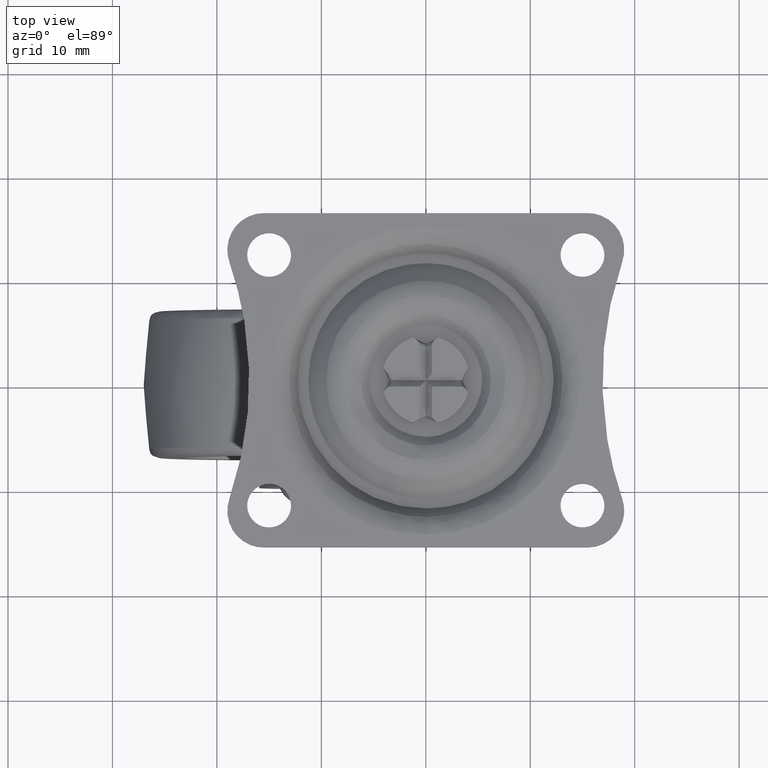
[diagram: clean part render]
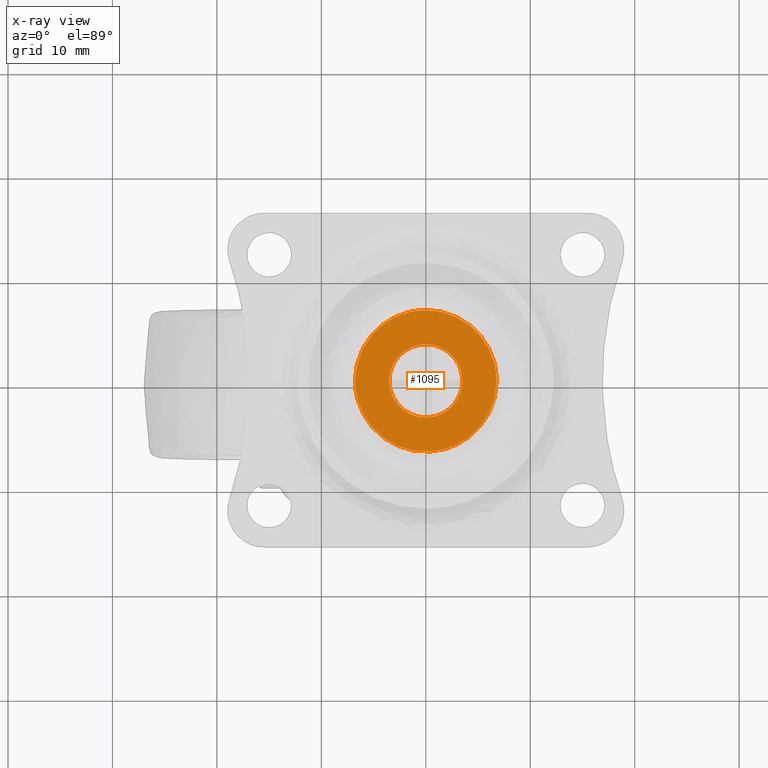
[diagram: x-ray — body ghosted, one internal face saturated and labeled with its STEP entity id]
A machine part, top view, then the same camera in x-ray: the body is ghosted and one INTERNAL B-rep face — a face not visible from any outside direction — is saturated and labeled: STEP entity #1095.
In plain terms, the highlighted face is a freeform B-spline surface patch.
Its self-contained STEP definition (entity closure, byte-faithful):
#85=CARTESIAN_POINT('',(-0.413124672162102,-3.475522380718831,-4.400000000000182));
#86=VERTEX_POINT('',#85);
#92=CARTESIAN_POINT('',(3.499989000004121,0.000005499999830,-4.400000000000181));
#93=VERTEX_POINT('',#92);
#94=CARTESIAN_POINT('',(-0.413124672162102,-3.475522380718832,-4.400000000000182));
#95=CARTESIAN_POINT('',(-0.207289593101051,-3.499989000004490,-4.400000000000181));
#96=CARTESIAN_POINT('',(-0.000005500000199,-3.499989000004490,-4.400000000000181));
#97=CARTESIAN_POINT('',(3.499989000004119,-3.499989000004490,-4.400000000000182));
#98=CARTESIAN_POINT('',(3.499989000004121,0.000005499999830,-4.400000000000181));
#106=(BOUNDED_CURVE()B_SPLINE_CURVE(2,(#94,#95,#96,#97,#98),.UNSPECIFIED.,.F.,.U.)B_SPLINE_CURVE_WITH_KNOTS((3,2,3),(0.229562473510681,0.250000000000000,0.500000000000000),.UNSPECIFIED.)CURVE()GEOMETRIC_REPRESENTATION_ITEM()RATIONAL_B_SPLINE_CURVE((0.956026754178159,0.976055948327833,1.0,0.707106781186547,1.0))REPRESENTATION_ITEM(''));
#107=EDGE_CURVE('',#86,#93,#106,.T.);
#109=CARTESIAN_POINT('',(0.213664052682512,3.493471804734549,-4.400000000000181));
#110=VERTEX_POINT('',#109);
#111=CARTESIAN_POINT('',(3.499989000004121,0.000005499999830,-4.400000000000181));
#112=CARTESIAN_POINT('',(3.499989000004119,3.292471560144241,-4.400000000000181));
#113=CARTESIAN_POINT('',(0.213664052682512,3.493471804734549,-4.400000000000181));
#121=(BOUNDED_CURVE()B_SPLINE_CURVE(2,(#111,#112,#113),.UNSPECIFIED.,.F.,.U.)B_SPLINE_CURVE_WITH_KNOTS((3,3),(0.500000000000000,0.739332962234320),.UNSPECIFIED.)CURVE()GEOMETRIC_REPRESENTATION_ITEM()RATIONAL_B_SPLINE_CURVE((1.0,0.719603993292126,0.976072041656810))REPRESENTATION_ITEM(''));
#122=EDGE_CURVE('',#93,#110,#121,.T.);
#196=CARTESIAN_POINT('',(-3.500000000004519,0.000005499999830,-4.400000000000181));
#197=VERTEX_POINT('',#196);
#198=CARTESIAN_POINT('',(0.213664052682512,3.493471804734549,-4.400000000000181));
#199=CARTESIAN_POINT('',(0.106929003582428,3.500000000004150,-4.400000000000181));
#200=CARTESIAN_POINT('',(-0.000005500000199,3.500000000004150,-4.400000000000181));
#201=CARTESIAN_POINT('',(-3.500000000004520,3.500000000004149,-4.400000000000182));
#202=CARTESIAN_POINT('',(-3.500000000004519,0.000005499999830,-4.400000000000181));
#210=(BOUNDED_CURVE()B_SPLINE_CURVE(2,(#198,#199,#200,#201,#202),.UNSPECIFIED.,.F.,.U.)B_SPLINE_CURVE_WITH_KNOTS((3,2,3),(0.739332962234321,0.750000000000000,1.0),.UNSPECIFIED.)CURVE()GEOMETRIC_REPRESENTATION_ITEM()RATIONAL_B_SPLINE_CURVE((0.976072041656812,0.987502787894422,1.0,0.707106781186547,1.0))REPRESENTATION_ITEM(''));
#211=EDGE_CURVE('',#110,#197,#210,.T.);
#213=CARTESIAN_POINT('',(-3.500000000004519,0.000005499999830,-4.400000000000181));
#214=CARTESIAN_POINT('',(-3.500000000004518,-3.108600455781976,-4.400000000000182));
#215=CARTESIAN_POINT('',(-0.413124672162102,-3.475522380718832,-4.400000000000182));
#223=(BOUNDED_CURVE()B_SPLINE_CURVE(2,(#213,#214,#215),.UNSPECIFIED.,.F.,.U.)B_SPLINE_CURVE_WITH_KNOTS((3,3),(0.0,0.229562473510682),.UNSPECIFIED.)CURVE()GEOMETRIC_REPRESENTATION_ITEM()RATIONAL_B_SPLINE_CURVE((1.0,0.731050832858714,0.956026754178159))REPRESENTATION_ITEM(''));
#224=EDGE_CURVE('',#197,#86,#223,.T.);
#861=CARTESIAN_POINT('',(0.472788007575981,-6.763446083952085,-4.400000000207625));
#862=VERTEX_POINT('',#861);
#863=CARTESIAN_POINT('',(-6.779950695194750,0.0,-4.400000000000090));
#864=VERTEX_POINT('',#863);
#865=CARTESIAN_POINT('',(0.472788007575981,-6.763446083952085,-4.400000000207625));
#866=CARTESIAN_POINT('',(0.236682084515512,-6.779950695194750,-4.400000000000090));
#867=CARTESIAN_POINT('',(0.0,-6.779950695194750,-4.400000000000090));
#868=CARTESIAN_POINT('',(-6.779950695194750,-6.779950695194750,-4.400000000000091));
#869=CARTESIAN_POINT('',(-6.779950695194750,0.0,-4.400000000000090));
#877=(BOUNDED_CURVE()B_SPLINE_CURVE(2,(#865,#866,#867,#868,#869),.UNSPECIFIED.,.F.,.U.)B_SPLINE_CURVE_WITH_KNOTS((3,2,3),(0.737833686531480,0.750000000000000,1.0),.UNSPECIFIED.)CURVE()GEOMETRIC_REPRESENTATION_ITEM()RATIONAL_B_SPLINE_CURVE((0.972879876379337,0.985746277148447,1.0,0.707106781186547,1.0))REPRESENTATION_ITEM(''));
#878=EDGE_CURVE('',#862,#864,#877,.T.);
#880=CARTESIAN_POINT('',(-0.085197130918230,6.779415378880557,-4.400000000190027));
#881=VERTEX_POINT('',#880);
#882=CARTESIAN_POINT('',(-6.779950695194750,0.0,-4.400000000000090));
#883=CARTESIAN_POINT('',(-6.779950695194748,6.695282195541844,-4.400000000000091));
#884=CARTESIAN_POINT('',(-0.085197130918230,6.779415378880557,-4.400000000190027));
#892=(BOUNDED_CURVE()B_SPLINE_CURVE(2,(#882,#883,#884),.UNSPECIFIED.,.F.,.U.)B_SPLINE_CURVE_WITH_KNOTS((3,3),(0.0,0.247784295917884),.UNSPECIFIED.)CURVE()GEOMETRIC_REPRESENTATION_ITEM()RATIONAL_B_SPLINE_CURVE((1.0,0.709702639988744,0.994854295635164))REPRESENTATION_ITEM(''));
#893=EDGE_CURVE('',#864,#881,#892,.T.);
#995=CARTESIAN_POINT('',(6.779950695194750,0.0,-4.400000000000090));
#996=VERTEX_POINT('',#995);
#997=CARTESIAN_POINT('',(6.779950695194750,0.0,-4.400000000000090));
#998=CARTESIAN_POINT('',(6.779950695194750,-6.322553845785320,-4.400000000000090));
#999=CARTESIAN_POINT('',(0.472788007575981,-6.763446083952085,-4.400000000207625));
#1007=(BOUNDED_CURVE()B_SPLINE_CURVE(2,(#997,#998,#999),.UNSPECIFIED.,.F.,.U.)B_SPLINE_CURVE_WITH_KNOTS((3,3),(0.500000000000000,0.737833686531479),.UNSPECIFIED.)CURVE()GEOMETRIC_REPRESENTATION_ITEM()RATIONAL_B_SPLINE_CURVE((1.0,0.721360504038102,0.972879876379335))REPRESENTATION_ITEM(''));
#1008=EDGE_CURVE('',#996,#862,#1007,.T.);
#1042=CARTESIAN_POINT('',(-0.085197130918230,6.779415378880557,-4.400000000190027));
#1043=CARTESIAN_POINT('',(-0.042600247263809,6.779950695194749,-4.400000000000090));
#1044=CARTESIAN_POINT('',(0.0,6.779950695194750,-4.400000000000090));
#1045=CARTESIAN_POINT('',(6.779950695194750,6.779950695194750,-4.400000000000091));
#1046=CARTESIAN_POINT('',(6.779950695194750,0.0,-4.400000000000090));
#1054=(BOUNDED_CURVE()B_SPLINE_CURVE(2,(#1042,#1043,#1044,#1045,#1046),.UNSPECIFIED.,.F.,.U.)B_SPLINE_CURVE_WITH_KNOTS((3,2,3),(0.247784295917884,0.250000000000000,0.500000000000000),.UNSPECIFIED.)CURVE()GEOMETRIC_REPRESENTATION_ITEM()RATIONAL_B_SPLINE_CURVE((0.994854295635165,0.997404141197804,1.0,0.707106781186547,1.0))REPRESENTATION_ITEM(''));
#1055=EDGE_CURVE('',#881,#996,#1054,.T.);
#1078=CARTESIAN_POINT('',(-7.457267743362987,-7.456428948138494,-4.400000000000090));
#1079=CARTESIAN_POINT('',(7.457268107067884,-7.456428948138494,-4.400000000000090));
#1080=CARTESIAN_POINT('',(-7.457267743362987,7.456667419165798,-4.400000000000090));
#1081=CARTESIAN_POINT('',(7.457268107067884,7.456667419165798,-4.400000000000090));
#1082=B_SPLINE_SURFACE_WITH_KNOTS('',1,1,((#1078,#1080),(#1079,#1081)),.UNSPECIFIED.,.F.,.F.,.U.,(2,2),(2,2),(0.0,14.914535850430870),(0.0,14.913096367304290),.UNSPECIFIED.);
#1083=ORIENTED_EDGE('',*,*,#878,.F.);
#1084=ORIENTED_EDGE('',*,*,#1008,.F.);
#1085=ORIENTED_EDGE('',*,*,#1055,.F.);
#1086=ORIENTED_EDGE('',*,*,#893,.F.);
#1087=EDGE_LOOP('',(#1083,#1084,#1085,#1086));
#1088=FACE_OUTER_BOUND('',#1087,.T.);
#1089=ORIENTED_EDGE('',*,*,#122,.F.);
#1090=ORIENTED_EDGE('',*,*,#107,.F.);
#1091=ORIENTED_EDGE('',*,*,#224,.F.);
#1092=ORIENTED_EDGE('',*,*,#211,.F.);
#1093=EDGE_LOOP('',(#1089,#1090,#1091,#1092));
#1094=FACE_BOUND('',#1093,.T.);
#1095=ADVANCED_FACE('',(#1088,#1094),#1082,.T.);